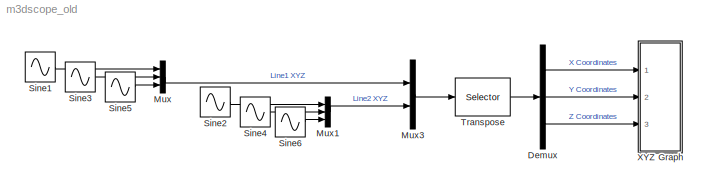
MODEL m3dscope_old
KIND model
BLOCK [Demux] Demux
  Outputs = [2 2 2]
  Ports = [1, 3]
  SID = 1
BLOCK [Mux] Mux
  DisplayOption = bar
  Inputs = 3
  Ports = [3, 1]
  SID = 2
BLOCK [Mux] Mux1
  DisplayOption = bar
  Inputs = 3
  Ports = [3, 1]
  SID = 3
BLOCK [Mux] Mux3
  DisplayOption = bar
  Inputs = 2
  Ports = [2, 1]
  SID = 4
BLOCK [Sin] Sine1
  Ports = [0, 1]
  SID = 5
  SampleTime = 0
BLOCK [Sin] Sine2
  Amplitude = 2
  Frequency = 2
  Ports = [0, 1]
  SID = 6
  SampleTime = 0
BLOCK [Sin] Sine3
  Phase = pi/2
  Ports = [0, 1]
  SID = 7
  SampleTime = 0
BLOCK [Sin] Sine4
  Amplitude = 2
  Frequency = 2
  Phase = pi/2
  Ports = [0, 1]
  SID = 8
  SampleTime = 0
BLOCK [Sin] Sine5
  Amplitude = 1.5
  Frequency = 1.2
  Phase = pi/2
  Ports = [0, 1]
  SID = 9
  SampleTime = 0
BLOCK [Sin] Sine6
  Amplitude = 2.5
  Frequency = 2.2
  Phase = pi/2
  Ports = [0, 1]
  SID = 10
  SampleTime = 0
BLOCK [Selector] Transpose
  IndexOptions = Index vector (dialog)
  Indices = reshape(reshape(1:3*2,3,2)',3*2,1)
  InputPortWidth = 3*2
  OutputSizes = 1
  Ports = [1, 1]
  SID = 11
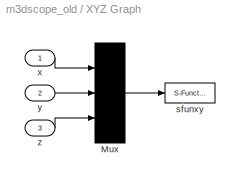
BLOCK [SubSystem] XYZ Graph
  CopyFcn = sfunxyz([],[],[],'CopyBlock')
  DeleteFcn = sfunxyz([],[],[],'DeleteBlock')
  LoadFcn = sfunxyz([],[],[],'LoadBlock')
  NameChangeFcn = sfunxyz([],[],[],'NameChange')
  Ports = [3]
  RequestExecContextInheritance = off
  SID = 12
  StartFcn = sfunxyz([],[],[],'Start')
  StopFcn = sfunxyz([],[],[],'Stop')
BLOCK [Mux] XYZ Graph/Mux
  Inputs = [np np np]
  Ports = [3, 1]
  SID = 12:4
BLOCK [S-Function] XYZ Graph/sfunxy
  EnableBusSupport = off
  FunctionName = sfunxyz
  Parameters = [xlim ylim zlim],st,np,cp,gd
  Ports = [1]
  SFcnIsStateOwnerBlock = off
  SFunctionDeploymentMode = off
  SID = 12:5
BLOCK [Inport] XYZ Graph/x
  IconDisplay = Port number
  SID = 12:1
BLOCK [Inport] XYZ Graph/y
  IconDisplay = Port number
  Port = 2
  SID = 12:2
BLOCK [Inport] XYZ Graph/z
  IconDisplay = Port number
  Port = 3
  SID = 12:3
LINE Demux:1 -> XYZ Graph:1
LINE Demux:2 -> XYZ Graph:2
LINE Demux:3 -> XYZ Graph:3
LINE Mux1:1 -> Mux3:2
LINE Mux3:1 -> Transpose:1
LINE Mux:1 -> Mux3:1
LINE Sine1:1 -> Mux:1
LINE Sine2:1 -> Mux1:1
LINE Sine3:1 -> Mux:2
LINE Sine4:1 -> Mux1:2
LINE Sine5:1 -> Mux:3
LINE Sine6:1 -> Mux1:3
LINE Transpose:1 -> Demux:1
LINE XYZ Graph/Mux:1 -> XYZ Graph/sfunxy:1
LINE XYZ Graph/x:1 -> XYZ Graph/Mux:1
LINE XYZ Graph/y:1 -> XYZ Graph/Mux:2
LINE XYZ Graph/z:1 -> XYZ Graph/Mux:3
